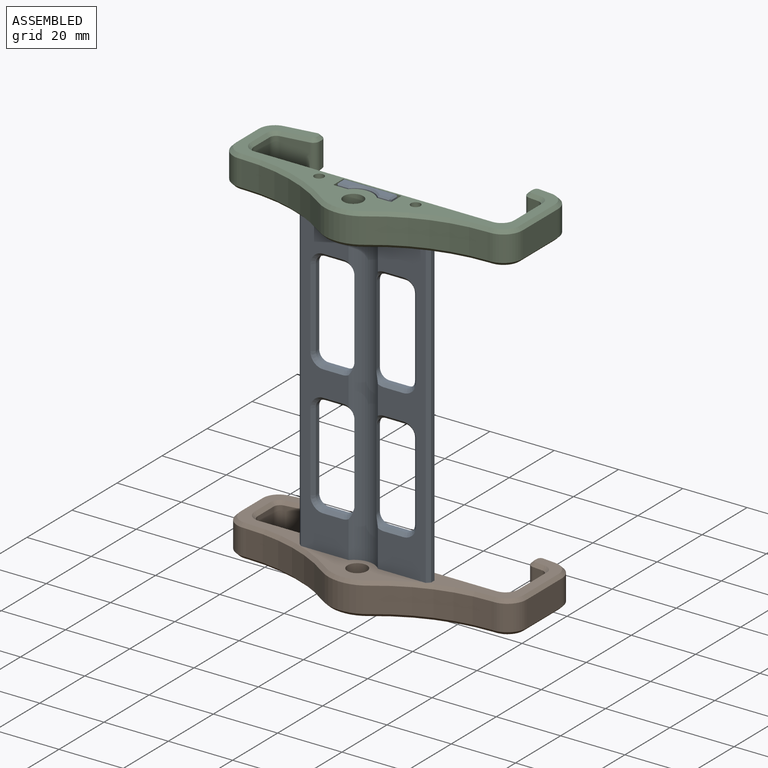
[diagram: assembled view]
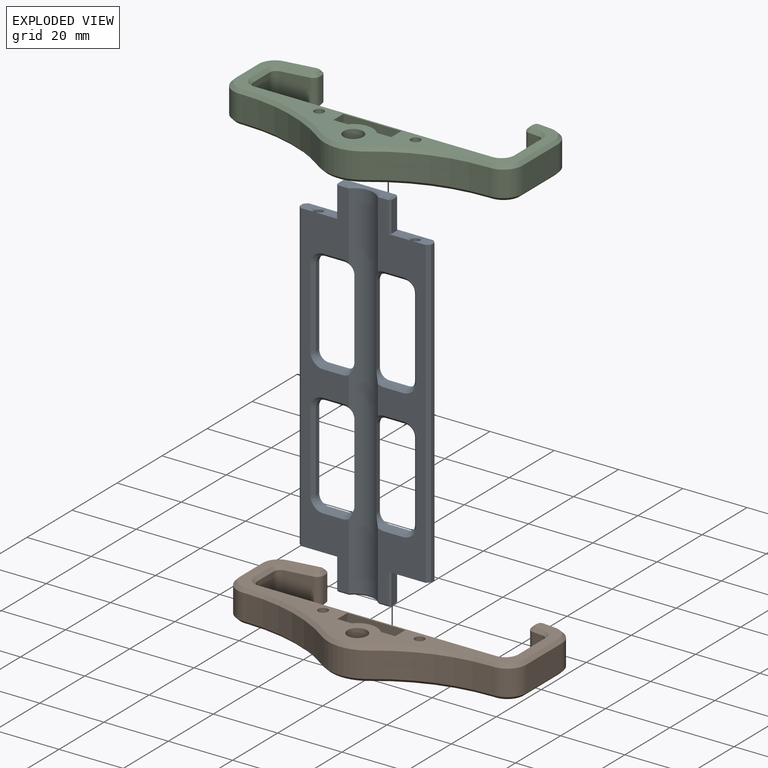
[diagram: exploded view]
GUIDED TOUR — MATED ASSEMBLY (Onshape document 2cb191aeb133913bc6169a5f, AutoMate assembly 2cb191aeb133913bc6169a5f_6d01fb769d9874e25568f675_39e03021b860ccd8de72395d_default)

This assembly has 3 components, labeled P0..P2 below (a component is one placed occurrence of a part; the same part can appear more than once), held together by 2 mates. A mate is a constraint between two components; its type names the relative motion it leaves free:
  FASTENED — locks the two components together rigidly (no relative motion).
Axis/direction vectors are unit vectors and 'through' points are millimeter coordinates, both in the assembly's world frame.

MATES
  1. FASTENED "Fastened 2": P0 <-> P2, direction (0.000, 0.000, -1.000) through (-7.82, 3.93, 30.43) mm
  2. FASTENED "Fastened 1": P0 <-> P1, direction (0.000, 0.000, 1.000) through (-7.82, 5.68, -64.07) mm

ASSEMBLY ORDER
  1. P0 — the base component [order heuristic]
  2. P1 [order heuristic]
  3. P2 [order heuristic]
Order-tag legend:
  [order heuristic] — this assembly is geometrically interlocked (no collision-free removal order exists), so components are listed in mate-graph order; insertion feasibility is not verified.

Of the 3 components, 2 carry the full construction recipe — the FeatureScript program that regenerates the part's solid from scratch; the rest are supplied as boundary geometry only.
Each toured component is shown spotlighted twice — in the assembled view, then in the exploded view, where a leader line traces a displaced component back to its assembled socket (saturated green if recipe-attached, orange if geometry-only; every other component desaturated gray) — followed by its recipe or geometry summary and the mates that hold it.
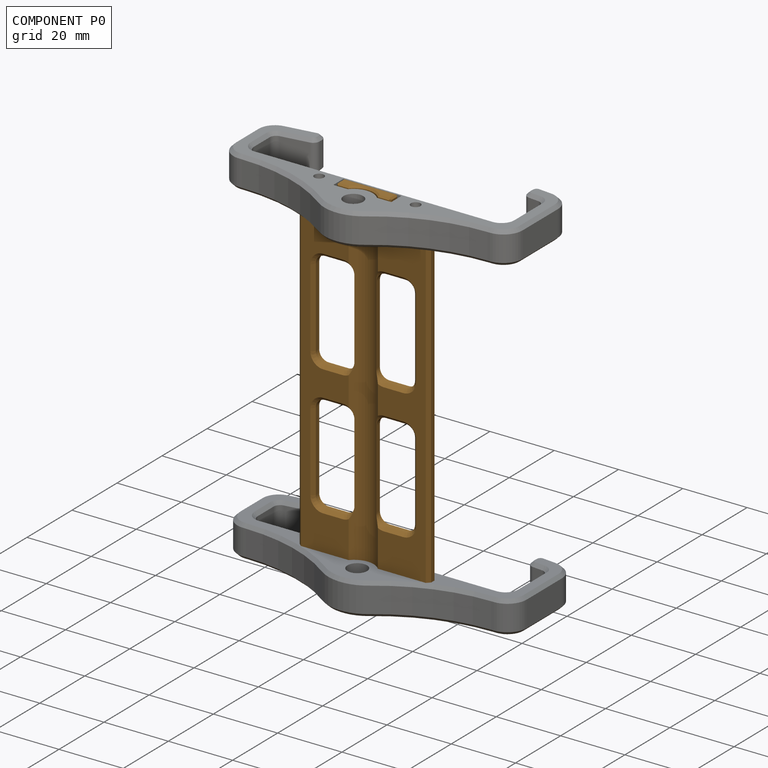
[diagram: component P0 — assembled]
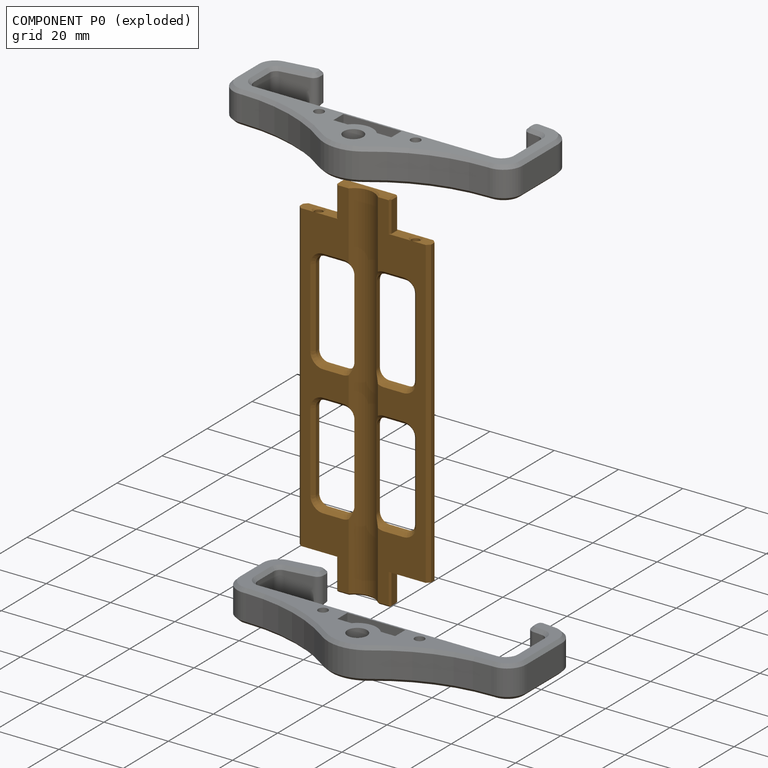
[diagram: component P0 — exploded]
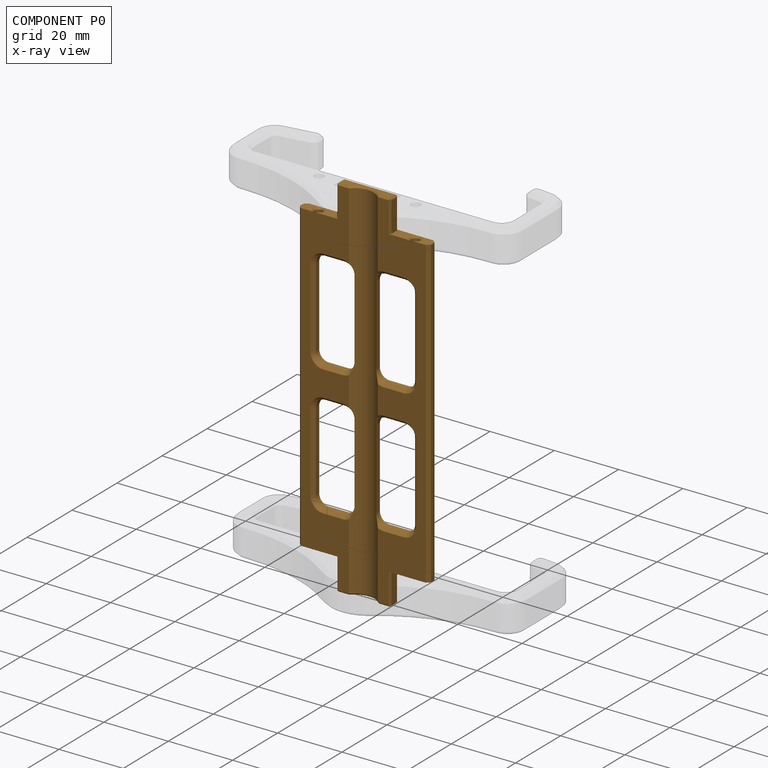
[diagram: component P0 — x-ray view]
COMPONENT P0 — geometry summary (no construction recipe available for this part):
  bounding box: 115.0 x 40.9 x 3.5 mm
  B-rep topology: 1 solid, 148 faces, 760 edges
  volume: 7630 mm^3 (46% of its bounding box)
  symmetry: 2-fold rotationally symmetric about the y axis; mirror-symmetric across its x mid-plane, z mid-plane
Held by: FASTENED mate "Fastened 2" to P2; FASTENED mate "Fastened 1" to P1.
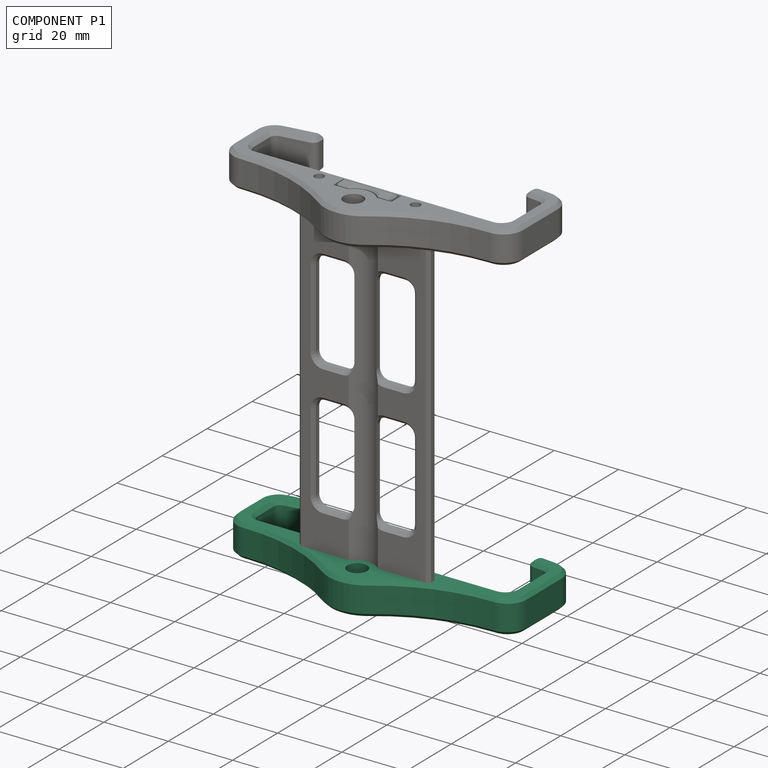
[diagram: component P1 — assembled]
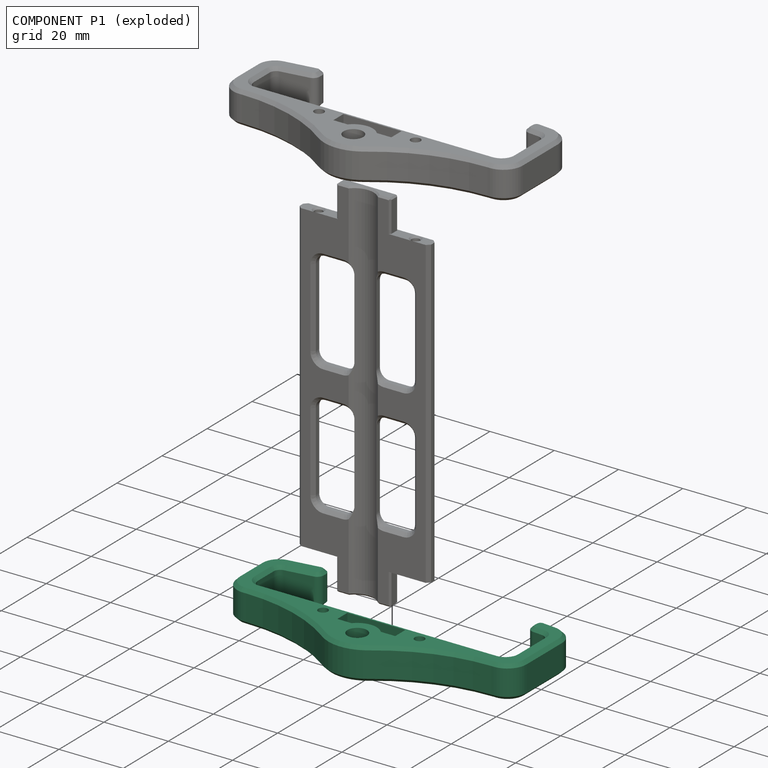
[diagram: component P1 — exploded]
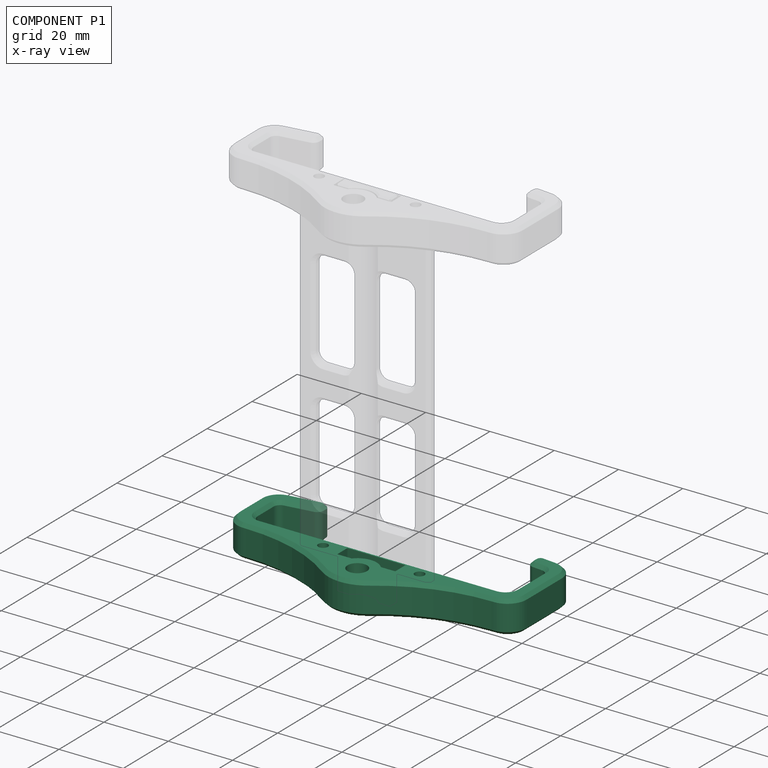
[diagram: component P1 — x-ray view]
COMPONENT P1 — recipe-attached (CADFS 00428147, mesh-verified: the recipe's output STEP matches this component's geometry to below the mesh-comparison resolution (tessellation chordal tolerance ~0.149 mm)).
Held by: FASTENED mate "Fastened 1" to P0.
Construction recipe (FeatureScript — the CAD program that rebuilds this solid; sketch coordinates are in the units given by the * unit suffixes, e.g. mm):

FeatureScript 1511;
import(path : "onshape/std/geometry.fs", version : "1511.0");
import(path : "onshape/std/common.fs", version : "1511.0");
const mm = millimeter;
const VERTEX = EntityType.VERTEX;
const EDGE = EntityType.EDGE;
const FACE = EntityType.FACE;
const BODY = EntityType.BODY;
function v(x, y){return vector(x, y);}
function OD(order){return orderDisambiguation(order);}
function OSD(set){return originalSetDisambiguation(set);}
function TD(topology){return topologyDisambiguation(topology);}
function TDD(query){return trueDependencyDisambiguation(query);}
function sQuery(a, b, c) {return sketchEntityQuery(a, b, c);}

annotation { "Feature Type Name" : "Feature", "Feature Type Description" : "" }
export const myFeature = defineFeature(function(context is Context, id is Id, definition is map)
    precondition{}
    {
        {
            var Q0;
            Q0=qCreatedBy(makeId("Right.planeOp"),FACE);
            var sketch = newSketch(context, id + "F0", { "sketchPlane" : qUnion([Q0])});
            skLineSegment(sketch, "E0", {"start": v(0, 77) * mm, "end": v(0, 3) * mm});
            skLineSegment(sketch, "E1", {"start": v(3, 80) * mm, "end": v(10, 80) * mm});
            skLineSegment(sketch, "E2", {"start": v(3, 0) * mm, "end": v(15.7, 0) * mm});
            skLineSegment(sketch, "E3", {"start": v(11.98, 78.3) * mm, "end": v(13.24, 69.84) * mm});
            skLineSegment(sketch, "E4", {"start": v(17.68, 1.8) * mm, "end": v(18, 4.97) * mm});
            skLineSegment(sketch, "E5.0", {"start": v(16.8, 79.89) * mm, "end": v(18.21, 70.43) * mm});
            skLineSegment(sketch, "E5.1", {"start": v(22.57, 0.4) * mm, "end": v(22.97, 4.47) * mm});
            skLineSegment(sketch, "E5.2", {"start": v(1, -5) * mm, "end": v(16.6, -5) * mm});
            skLineSegment(sketch, "E5.3", {"start": v(-5, 79) * mm, "end": v(-5, 78.16) * mm});
            skLineSegment(sketch, "E5.4", {"start": v(1, 85) * mm, "end": v(10.86, 85) * mm});
            skLineSegment(sketch, "E6", {"start": v(15.22, 68.13) * mm, "end": v(16.23, 68.13) * mm});
            skLineSegment(sketch, "E7", {"start": v(20.19, 6.76) * mm, "end": v(21.18, 6.66) * mm});
            skPoint(sketch, "E8.visualSharp", {"position": v(0, 72) * mm});
            skArc(sketch, "E8.filletArc", {"start": v(3, 80) * mm, "mid": v(0.88, 79.12) * mm, "end": v(0, 77) * mm});
            skPoint(sketch, "E9.visualSharp", {"position": v(11.72, 80) * mm});
            skArc(sketch, "E9.filletArc", {"start": v(11.98, 78.3) * mm, "mid": v(11.3, 79.52) * mm, "end": v(10, 80) * mm});
            skPoint(sketch, "E10.visualSharp", {"position": v(0, 0) * mm});
            skArc(sketch, "E10.filletArc", {"start": v(0, 3) * mm, "mid": v(0.88, 0.88) * mm, "end": v(3, 0) * mm});
            skPoint(sketch, "E11.visualSharp", {"position": v(17.5, 0) * mm});
            skArc(sketch, "E11.filletArc", {"start": v(15.7, 0) * mm, "mid": v(17.03, 0.52) * mm, "end": v(17.68, 1.8) * mm});
            skPoint(sketch, "E12.visualSharp", {"position": v(18.2, 6.96) * mm});
            skArc(sketch, "E12.filletArc", {"start": v(20.19, 6.76) * mm, "mid": v(18.72, 6.32) * mm, "end": v(18, 4.97) * mm});
            skPoint(sketch, "E13.visualSharp", {"position": v(23.17, 6.46) * mm});
            skArc(sketch, "E13.filletArc", {"start": v(22.97, 4.47) * mm, "mid": v(22.53, 5.94) * mm, "end": v(21.18, 6.66) * mm});
            skPoint(sketch, "E14.visualSharp", {"position": v(13.5, 68.13) * mm});
            skArc(sketch, "E14.filletArc", {"start": v(13.24, 69.84) * mm, "mid": v(13.92, 68.62) * mm, "end": v(15.22, 68.13) * mm});
            skPoint(sketch, "E15.visualSharp", {"position": v(18.56, 68.13) * mm});
            skArc(sketch, "E15.filletArc", {"start": v(16.23, 68.13) * mm, "mid": v(17.75, 68.83) * mm, "end": v(18.21, 70.43) * mm});
            skPoint(sketch, "E16.visualSharp", {"position": v(16.03, 85) * mm});
            skArc(sketch, "E16.filletArc", {"start": v(16.8, 79.89) * mm, "mid": v(14.78, 83.55) * mm, "end": v(10.86, 85) * mm});
            skPoint(sketch, "E17.visualSharp", {"position": v(-5, 85) * mm});
            skArc(sketch, "E17.filletArc", {"start": v(1, 85) * mm, "mid": v(-3.24, 83.24) * mm, "end": v(-5, 79) * mm});
            skPoint(sketch, "E18.visualSharp", {"position": v(22.02, -5) * mm});
            skArc(sketch, "E18.filletArc", {"start": v(16.6, -5) * mm, "mid": v(20.62, -3.45) * mm, "end": v(22.57, 0.4) * mm});
            skPoint(sketch, "E19.visualSharp", {"position": v(-5, -5) * mm});
            skArc(sketch, "E19.filletArc", {"start": v(-5, 1) * mm, "mid": v(-3.24, -3.24) * mm, "end": v(1, -5) * mm});
            skArc(sketch, "E20", {"start": v(-15.08, 47.4) * mm, "mid": v(-17.5, 40) * mm, "end": v(-15.08, 32.6) * mm});
            skLineSegment(sketch, "E21.trimOffspring", {"start": v(-5, 1.84) * mm, "end": v(-5, 1) * mm});
            skPoint(sketch, "E22.visualSharp", {"position": v(-5, 52.5) * mm});
            skArc(sketch, "E22.filletArc", {"start": v(-15.08, 47.4) * mm, "mid": v(-7.58, 61.97) * mm, "end": v(-5, 78.16) * mm});
            skPoint(sketch, "E23.visualSharp", {"position": v(-5, 27.5) * mm});
            skArc(sketch, "E23.filletArc", {"start": v(-5, 1.84) * mm, "mid": v(-7.58, 18.03) * mm, "end": v(-15.08, 32.6) * mm});
            skCircle(sketch, "E24", {"center": v(-10, 40) * mm, "radius": 3.05 * mm});
            skSolve(sketch);
        }
        {
            var Q0;
            Q0=makeQuery(id+"F0.imprint","IMPRINT",FACE,{"disambiguationData":[TD([[makeQuery(id+"F0.imprint","IMPRINT",EDGE,{"derivedFrom":sQuery(id+"F0.wireOp",EDGE,"E0")}),-1.0]])]});
            extrude(context, id + "F1", {"entities" : qUnion([Q0]), "depth" : 10 * mm});
        }
        {
            var Q0;
            Q0=makeQuery(id+"F1.opExtrude","SWEPT_BODY",BODY,{"disambiguationData":[OSD([sQuery(id+"F0.wireOp",EDGE,"E0"),sQuery(id+"F0.wireOp",EDGE,"E1"),sQuery(id+"F0.wireOp",EDGE,"E2"),sQuery(id+"F0.wireOp",EDGE,"E3"),sQuery(id+"F0.wireOp",EDGE,"E4"),sQuery(id+"F0.wireOp",EDGE,"E5.0"),sQuery(id+"F0.wireOp",EDGE,"E5.1"),sQuery(id+"F0.wireOp",EDGE,"E5.2"),sQuery(id+"F0.wireOp",EDGE,"E5.3"),sQuery(id+"F0.wireOp",EDGE,"E5.4"),sQuery(id+"F0.wireOp",EDGE,"E6"),sQuery(id+"F0.wireOp",EDGE,"E7"),sQuery(id+"F0.wireOp",EDGE,"E8.filletArc"),sQuery(id+"F0.wireOp",EDGE,"E9.filletArc"),sQuery(id+"F0.wireOp",EDGE,"E10.filletArc"),sQuery(id+"F0.wireOp",EDGE,"E11.filletArc"),sQuery(id+"F0.wireOp",EDGE,"E12.filletArc"),sQuery(id+"F0.wireOp",EDGE,"E13.filletArc"),sQuery(id+"F0.wireOp",EDGE,"E14.filletArc"),sQuery(id+"F0.wireOp",EDGE,"E15.filletArc"),sQuery(id+"F0.wireOp",EDGE,"E16.filletArc"),sQuery(id+"F0.wireOp",EDGE,"E17.filletArc"),sQuery(id+"F0.wireOp",EDGE,"E18.filletArc"),sQuery(id+"F0.wireOp",EDGE,"E19.filletArc"),sQuery(id+"F0.wireOp",EDGE,"E20"),sQuery(id+"F0.wireOp",EDGE,"E21.trimOffspring"),sQuery(id+"F0.wireOp",EDGE,"E22.filletArc"),sQuery(id+"F0.wireOp",EDGE,"E23.filletArc"),sQuery(id+"F0.wireOp",EDGE,"E24")])]});
            var Q1;
            Q1=makeQuery(id+"F1.opExtrude","CAP_EDGE",EDGE,{"disambiguationData":[OSD([sQuery(id+"F0.wireOp",EDGE,"E5.2")])],"isStart":true});
            transform(context, id + "F2", {"entities" : qUnion([Q0]), "transformType" : TransformType.ROTATION, "transformAxis" : qUnion([Q1]), "angle" : 90 * degree, "oppositeDirection" : true, "makeCopy" : false});
        }
        {
            var Q0;
            Q0=makeQuery(id+"F1.opExtrude","SWEPT_BODY",BODY,{"disambiguationData":[OSD([sQuery(id+"F0.wireOp",EDGE,"E0"),sQuery(id+"F0.wireOp",EDGE,"E1"),sQuery(id+"F0.wireOp",EDGE,"E2"),sQuery(id+"F0.wireOp",EDGE,"E3"),sQuery(id+"F0.wireOp",EDGE,"E4"),sQuery(id+"F0.wireOp",EDGE,"E5.0"),sQuery(id+"F0.wireOp",EDGE,"E5.1"),sQuery(id+"F0.wireOp",EDGE,"E5.2"),sQuery(id+"F0.wireOp",EDGE,"E5.3"),sQuery(id+"F0.wireOp",EDGE,"E5.4"),sQuery(id+"F0.wireOp",EDGE,"E6"),sQuery(id+"F0.wireOp",EDGE,"E7"),sQuery(id+"F0.wireOp",EDGE,"E8.filletArc"),sQuery(id+"F0.wireOp",EDGE,"E9.filletArc"),sQuery(id+"F0.wireOp",EDGE,"E10.filletArc"),sQuery(id+"F0.wireOp",EDGE,"E11.filletArc"),sQuery(id+"F0.wireOp",EDGE,"E12.filletArc"),sQuery(id+"F0.wireOp",EDGE,"E13.filletArc"),sQuery(id+"F0.wireOp",EDGE,"E14.filletArc"),sQuery(id+"F0.wireOp",EDGE,"E15.filletArc"),sQuery(id+"F0.wireOp",EDGE,"E16.filletArc"),sQuery(id+"F0.wireOp",EDGE,"E17.filletArc"),sQuery(id+"F0.wireOp",EDGE,"E18.filletArc"),sQuery(id+"F0.wireOp",EDGE,"E19.filletArc"),sQuery(id+"F0.wireOp",EDGE,"E20"),sQuery(id+"F0.wireOp",EDGE,"E21.trimOffspring"),sQuery(id+"F0.wireOp",EDGE,"E22.filletArc"),sQuery(id+"F0.wireOp",EDGE,"E23.filletArc"),sQuery(id+"F0.wireOp",EDGE,"E24")])]});
            transform(context, id + "F3", {"entities" : qUnion([Q0]), "transformType" : TransformType.TRANSLATION_3D, "dx" : 0 * mm, "dy" : 0 * mm, "dz" : 10 * mm, "makeCopy" : false});
        }
        {
            var Q0;
            Q0=makeQuery(id+"F1.opExtrude","SWEPT_BODY",BODY,{"disambiguationData":[OSD([sQuery(id+"F0.wireOp",EDGE,"E0"),sQuery(id+"F0.wireOp",EDGE,"E1"),sQuery(id+"F0.wireOp",EDGE,"E2"),sQuery(id+"F0.wireOp",EDGE,"E3"),sQuery(id+"F0.wireOp",EDGE,"E4"),sQuery(id+"F0.wireOp",EDGE,"E5.0"),sQuery(id+"F0.wireOp",EDGE,"E5.1"),sQuery(id+"F0.wireOp",EDGE,"E5.2"),sQuery(id+"F0.wireOp",EDGE,"E5.3"),sQuery(id+"F0.wireOp",EDGE,"E5.4"),sQuery(id+"F0.wireOp",EDGE,"E6"),sQuery(id+"F0.wireOp",EDGE,"E7"),sQuery(id+"F0.wireOp",EDGE,"E8.filletArc"),sQuery(id+"F0.wireOp",EDGE,"E9.filletArc"),sQuery(id+"F0.wireOp",EDGE,"E10.filletArc"),sQuery(id+"F0.wireOp",EDGE,"E11.filletArc"),sQuery(id+"F0.wireOp",EDGE,"E12.filletArc"),sQuery(id+"F0.wireOp",EDGE,"E13.filletArc"),sQuery(id+"F0.wireOp",EDGE,"E14.filletArc"),sQuery(id+"F0.wireOp",EDGE,"E15.filletArc"),sQuery(id+"F0.wireOp",EDGE,"E16.filletArc"),sQuery(id+"F0.wireOp",EDGE,"E17.filletArc"),sQuery(id+"F0.wireOp",EDGE,"E18.filletArc"),sQuery(id+"F0.wireOp",EDGE,"E19.filletArc"),sQuery(id+"F0.wireOp",EDGE,"E20"),sQuery(id+"F0.wireOp",EDGE,"E21.trimOffspring"),sQuery(id+"F0.wireOp",EDGE,"E22.filletArc"),sQuery(id+"F0.wireOp",EDGE,"E23.filletArc"),sQuery(id+"F0.wireOp",EDGE,"E24")])]});
            transform(context, id + "F4", {"entities" : qUnion([Q0]), "transformType" : TransformType.TRANSLATION_3D, "dx" : 0 * mm, "dy" : 0 * mm, "dz" : -10 * mm, "makeCopy" : false});
        }
        {
            var Q0;
            Q0=makeQuery(id+"F1.opExtrude","SWEPT_BODY",BODY,{"disambiguationData":[OSD([sQuery(id+"F0.wireOp",EDGE,"E0"),sQuery(id+"F0.wireOp",EDGE,"E1"),sQuery(id+"F0.wireOp",EDGE,"E2"),sQuery(id+"F0.wireOp",EDGE,"E3"),sQuery(id+"F0.wireOp",EDGE,"E4"),sQuery(id+"F0.wireOp",EDGE,"E5.0"),sQuery(id+"F0.wireOp",EDGE,"E5.1"),sQuery(id+"F0.wireOp",EDGE,"E5.2"),sQuery(id+"F0.wireOp",EDGE,"E5.3"),sQuery(id+"F0.wireOp",EDGE,"E5.4"),sQuery(id+"F0.wireOp",EDGE,"E6"),sQuery(id+"F0.wireOp",EDGE,"E7"),sQuery(id+"F0.wireOp",EDGE,"E8.filletArc"),sQuery(id+"F0.wireOp",EDGE,"E9.filletArc"),sQuery(id+"F0.wireOp",EDGE,"E10.filletArc"),sQuery(id+"F0.wireOp",EDGE,"E11.filletArc"),sQuery(id+"F0.wireOp",EDGE,"E12.filletArc"),sQuery(id+"F0.wireOp",EDGE,"E13.filletArc"),sQuery(id+"F0.wireOp",EDGE,"E14.filletArc"),sQuery(id+"F0.wireOp",EDGE,"E15.filletArc"),sQuery(id+"F0.wireOp",EDGE,"E16.filletArc"),sQuery(id+"F0.wireOp",EDGE,"E17.filletArc"),sQuery(id+"F0.wireOp",EDGE,"E18.filletArc"),sQuery(id+"F0.wireOp",EDGE,"E19.filletArc"),sQuery(id+"F0.wireOp",EDGE,"E20"),sQuery(id+"F0.wireOp",EDGE,"E21.trimOffspring"),sQuery(id+"F0.wireOp",EDGE,"E22.filletArc"),sQuery(id+"F0.wireOp",EDGE,"E23.filletArc"),sQuery(id+"F0.wireOp",EDGE,"E24")])]});
            transform(context, id + "F5", {"entities" : qUnion([Q0]), "transformType" : TransformType.TRANSLATION_3D, "dx" : 0 * mm, "dy" : 0 * mm, "dz" : 5 * mm, "makeCopy" : false});
        }
        {
            var Q0;
            Q0=makeQuery(id+"F1.opExtrude","SWEPT_BODY",BODY,{"disambiguationData":[OSD([sQuery(id+"F0.wireOp",EDGE,"E0"),sQuery(id+"F0.wireOp",EDGE,"E1"),sQuery(id+"F0.wireOp",EDGE,"E2"),sQuery(id+"F0.wireOp",EDGE,"E3"),sQuery(id+"F0.wireOp",EDGE,"E4"),sQuery(id+"F0.wireOp",EDGE,"E5.0"),sQuery(id+"F0.wireOp",EDGE,"E5.1"),sQuery(id+"F0.wireOp",EDGE,"E5.2"),sQuery(id+"F0.wireOp",EDGE,"E5.3"),sQuery(id+"F0.wireOp",EDGE,"E5.4"),sQuery(id+"F0.wireOp",EDGE,"E6"),sQuery(id+"F0.wireOp",EDGE,"E7"),sQuery(id+"F0.wireOp",EDGE,"E8.filletArc"),sQuery(id+"F0.wireOp",EDGE,"E9.filletArc"),sQuery(id+"F0.wireOp",EDGE,"E10.filletArc"),sQuery(id+"F0.wireOp",EDGE,"E11.filletArc"),sQuery(id+"F0.wireOp",EDGE,"E12.filletArc"),sQuery(id+"F0.wireOp",EDGE,"E13.filletArc"),sQuery(id+"F0.wireOp",EDGE,"E14.filletArc"),sQuery(id+"F0.wireOp",EDGE,"E15.filletArc"),sQuery(id+"F0.wireOp",EDGE,"E16.filletArc"),sQuery(id+"F0.wireOp",EDGE,"E17.filletArc"),sQuery(id+"F0.wireOp",EDGE,"E18.filletArc"),sQuery(id+"F0.wireOp",EDGE,"E19.filletArc"),sQuery(id+"F0.wireOp",EDGE,"E20"),sQuery(id+"F0.wireOp",EDGE,"E21.trimOffspring"),sQuery(id+"F0.wireOp",EDGE,"E22.filletArc"),sQuery(id+"F0.wireOp",EDGE,"E23.filletArc"),sQuery(id+"F0.wireOp",EDGE,"E24")])]});
            transform(context, id + "F6", {"entities" : qUnion([Q0]), "transformType" : TransformType.TRANSLATION_3D, "dx" : 40 * mm, "dy" : 0 * mm, "dz" : 0 * mm, "makeCopy" : false});
        }
        {
            var Q0;
            Q0=makeQuery(id+"F1.opExtrude","CAP_FACE",FACE,{"disambiguationData":[OSD([sQuery(id+"F0.wireOp",EDGE,"E0"),sQuery(id+"F0.wireOp",EDGE,"E1"),sQuery(id+"F0.wireOp",EDGE,"E2"),sQuery(id+"F0.wireOp",EDGE,"E3"),sQuery(id+"F0.wireOp",EDGE,"E4"),sQuery(id+"F0.wireOp",EDGE,"E5.0"),sQuery(id+"F0.wireOp",EDGE,"E5.1"),sQuery(id+"F0.wireOp",EDGE,"E5.2"),sQuery(id+"F0.wireOp",EDGE,"E5.3"),sQuery(id+"F0.wireOp",EDGE,"E5.4"),sQuery(id+"F0.wireOp",EDGE,"E6"),sQuery(id+"F0.wireOp",EDGE,"E7"),sQuery(id+"F0.wireOp",EDGE,"E8.filletArc"),sQuery(id+"F0.wireOp",EDGE,"E9.filletArc"),sQuery(id+"F0.wireOp",EDGE,"E10.filletArc"),sQuery(id+"F0.wireOp",EDGE,"E11.filletArc"),sQuery(id+"F0.wireOp",EDGE,"E12.filletArc"),sQuery(id+"F0.wireOp",EDGE,"E13.filletArc"),sQuery(id+"F0.wireOp",EDGE,"E14.filletArc"),sQuery(id+"F0.wireOp",EDGE,"E15.filletArc"),sQuery(id+"F0.wireOp",EDGE,"E16.filletArc"),sQuery(id+"F0.wireOp",EDGE,"E17.filletArc"),sQuery(id+"F0.wireOp",EDGE,"E18.filletArc"),sQuery(id+"F0.wireOp",EDGE,"E19.filletArc"),sQuery(id+"F0.wireOp",EDGE,"E20"),sQuery(id+"F0.wireOp",EDGE,"E21.trimOffspring"),sQuery(id+"F0.wireOp",EDGE,"E22.filletArc"),sQuery(id+"F0.wireOp",EDGE,"E23.filletArc"),sQuery(id+"F0.wireOp",EDGE,"E24")])],"isStart":false});
            var sketch = newSketch(context, id + "F7", { "sketchPlane" : qUnion([Q0])});
            skLineSegment(sketch, "E25", {"start": v(-5, -10) * mm, "end": v(-5, 3.8) * mm, "construction": true});
            skPoint(sketch, "E25.endSnap0", {"position": v(-5, 0) * mm});
            skLineSegment(sketch, "E26", {"start": v(4.01, -1.5) * mm, "end": v(4.01, -6) * mm});
            skLineSegment(sketch, "E27", {"start": v(4.01, -6) * mm, "end": v(-0.46, -6) * mm});
            skLineSegment(sketch, "E28", {"start": v(-14.01, -6) * mm, "end": v(-14.01, -1.5) * mm});
            skLineSegment(sketch, "E29", {"start": v(-14.01, -1.5) * mm, "end": v(4.01, -1.5) * mm});
            skArc(sketch, "E30", {"start": v(-0.46, -6) * mm, "mid": v(-5, -3.95) * mm, "end": v(-9.54, -6) * mm});
            skLineSegment(sketch, "E31.trimOffspring", {"start": v(-9.54, -6) * mm, "end": v(-14.01, -6) * mm});
            skLineSegment(sketch, "E32", {"start": v(-14.01, -3.75) * mm, "end": v(19.58, -3.75) * mm, "construction": true});
            skLineSegment(sketch, "E33", {"start": v(-14.01, -3.75) * mm, "end": v(-26.01, -3.75) * mm, "construction": true});
            skCircle(sketch, "E34", {"center": v(-20.01, -3.75) * mm, "radius": 1.5 * mm});
            skCircle(sketch, "E35", {"center": v(10.01, -3.75) * mm, "radius": 1.5 * mm});
            skSolve(sketch);
        }
        {
            var Q0;
            Q0=makeQuery(id+"F7.imprint","IMPRINT",FACE,{"disambiguationData":[TD([[makeQuery(id+"F7.imprint","IMPRINT",EDGE,{"derivedFrom":sQuery(id+"F7.wireOp",EDGE,"E26")}),-1.0]])]});
            var Q1;
            Q1=makeQuery(id+"F7.imprint","IMPRINT",FACE,{"disambiguationData":[TD([[makeQuery(id+"F7.imprint","IMPRINT",EDGE,{"derivedFrom":sQuery(id+"F7.wireOp",EDGE,"E34")}),1.0]])]});
            var Q2;
            Q2=makeQuery(id+"F7.imprint","IMPRINT",FACE,{"disambiguationData":[TD([[makeQuery(id+"F7.imprint","IMPRINT",EDGE,{"derivedFrom":sQuery(id+"F7.wireOp",EDGE,"E35")}),1.0]])]});
            extrude(context, id + "F8", {"entities" : qUnion([Q0, Q1, Q2]), "operationType" : NewBodyOperationType.REMOVE, "endBound" : BoundingType.UP_TO_NEXT, "oppositeDirection" : true, "depth" : 25 * mm});
        }
        {
            var Q0;
            Q0=makeQuery(id+"F1.opExtrude","CAP_EDGE",EDGE,{"disambiguationData":[OSD([sQuery(id+"F0.wireOp",EDGE,"E0")])],"isStart":false});
            var Q1;
            Q1=makeQuery(id+"F1.opExtrude","CAP_EDGE",EDGE,{"disambiguationData":[OSD([sQuery(id+"F0.wireOp",EDGE,"E8.filletArc")])],"isStart":false});
            var Q2;
            Q2=makeQuery(id+"F1.opExtrude","CAP_EDGE",EDGE,{"disambiguationData":[OSD([sQuery(id+"F0.wireOp",EDGE,"E1")])],"isStart":false});
            var Q3;
            Q3=makeQuery(id+"F1.opExtrude","CAP_EDGE",EDGE,{"disambiguationData":[OSD([sQuery(id+"F0.wireOp",EDGE,"E9.filletArc")])],"isStart":false});
            var Q4;
            Q4=makeQuery(id+"F1.opExtrude","CAP_EDGE",EDGE,{"disambiguationData":[OSD([sQuery(id+"F0.wireOp",EDGE,"E3")])],"isStart":false});
            var Q5;
            Q5=makeQuery(id+"F1.opExtrude","CAP_EDGE",EDGE,{"disambiguationData":[OSD([sQuery(id+"F0.wireOp",EDGE,"E14.filletArc")])],"isStart":false});
            var Q6;
            Q6=makeQuery(id+"F1.opExtrude","CAP_EDGE",EDGE,{"disambiguationData":[OSD([sQuery(id+"F0.wireOp",EDGE,"E6")])],"isStart":false});
            var Q7;
            Q7=makeQuery(id+"F1.opExtrude","CAP_EDGE",EDGE,{"disambiguationData":[OSD([sQuery(id+"F0.wireOp",EDGE,"E15.filletArc")])],"isStart":false});
            var Q8;
            Q8=makeQuery(id+"F1.opExtrude","CAP_EDGE",EDGE,{"disambiguationData":[OSD([sQuery(id+"F0.wireOp",EDGE,"E5.0")])],"isStart":false});
            var Q9;
            Q9=makeQuery(id+"F1.opExtrude","CAP_EDGE",EDGE,{"disambiguationData":[OSD([sQuery(id+"F0.wireOp",EDGE,"E16.filletArc")])],"isStart":false});
            var Q10;
            Q10=makeQuery(id+"F1.opExtrude","CAP_EDGE",EDGE,{"disambiguationData":[OSD([sQuery(id+"F0.wireOp",EDGE,"E5.4")])],"isStart":false});
            var Q11;
            Q11=makeQuery(id+"F1.opExtrude","CAP_EDGE",EDGE,{"disambiguationData":[OSD([sQuery(id+"F0.wireOp",EDGE,"E17.filletArc")])],"isStart":false});
            var Q12;
            Q12=makeQuery(id+"F1.opExtrude","CAP_EDGE",EDGE,{"disambiguationData":[OSD([sQuery(id+"F0.wireOp",EDGE,"E5.3")])],"isStart":false});
            var Q13;
            Q13=makeQuery(id+"F1.opExtrude","CAP_EDGE",EDGE,{"disambiguationData":[OSD([sQuery(id+"F0.wireOp",EDGE,"E22.filletArc")])],"isStart":false});
            var Q14;
            Q14=makeQuery(id+"F1.opExtrude","CAP_EDGE",EDGE,{"disambiguationData":[OSD([sQuery(id+"F0.wireOp",EDGE,"E20")])],"isStart":false});
            var Q15;
            Q15=makeQuery(id+"F1.opExtrude","CAP_EDGE",EDGE,{"disambiguationData":[OSD([sQuery(id+"F0.wireOp",EDGE,"E23.filletArc")])],"isStart":false});
            var Q16;
            Q16=makeQuery(id+"F1.opExtrude","CAP_EDGE",EDGE,{"disambiguationData":[OSD([sQuery(id+"F0.wireOp",EDGE,"E21.trimOffspring")])],"isStart":false});
            var Q17;
            Q17=makeQuery(id+"F1.opExtrude","CAP_EDGE",EDGE,{"disambiguationData":[OSD([sQuery(id+"F0.wireOp",EDGE,"E19.filletArc")])],"isStart":false});
            var Q18;
            Q18=makeQuery(id+"F1.opExtrude","CAP_EDGE",EDGE,{"disambiguationData":[OSD([sQuery(id+"F0.wireOp",EDGE,"E5.2")])],"isStart":false});
            var Q19;
            Q19=makeQuery(id+"F1.opExtrude","CAP_EDGE",EDGE,{"disambiguationData":[OSD([sQuery(id+"F0.wireOp",EDGE,"E18.filletArc")])],"isStart":false});
            var Q20;
            Q20=makeQuery(id+"F1.opExtrude","CAP_EDGE",EDGE,{"disambiguationData":[OSD([sQuery(id+"F0.wireOp",EDGE,"E5.1")])],"isStart":false});
            var Q21;
            Q21=makeQuery(id+"F1.opExtrude","CAP_EDGE",EDGE,{"disambiguationData":[OSD([sQuery(id+"F0.wireOp",EDGE,"E13.filletArc")])],"isStart":false});
            var Q22;
            Q22=makeQuery(id+"F1.opExtrude","CAP_EDGE",EDGE,{"disambiguationData":[OSD([sQuery(id+"F0.wireOp",EDGE,"E7")])],"isStart":false});
            var Q23;
            Q23=makeQuery(id+"F1.opExtrude","CAP_EDGE",EDGE,{"disambiguationData":[OSD([sQuery(id+"F0.wireOp",EDGE,"E12.filletArc")])],"isStart":false});
            var Q24;
            Q24=makeQuery(id+"F1.opExtrude","CAP_EDGE",EDGE,{"disambiguationData":[OSD([sQuery(id+"F0.wireOp",EDGE,"E4")])],"isStart":false});
            var Q25;
            Q25=makeQuery(id+"F1.opExtrude","CAP_EDGE",EDGE,{"disambiguationData":[OSD([sQuery(id+"F0.wireOp",EDGE,"E11.filletArc")])],"isStart":false});
            var Q26;
            Q26=makeQuery(id+"F1.opExtrude","CAP_EDGE",EDGE,{"disambiguationData":[OSD([sQuery(id+"F0.wireOp",EDGE,"E2")])],"isStart":false});
            var Q27;
            Q27=makeQuery(id+"F1.opExtrude","CAP_EDGE",EDGE,{"disambiguationData":[OSD([sQuery(id+"F0.wireOp",EDGE,"E10.filletArc")])],"isStart":false});
            chamfer(context, id + "F9", {"entities" : qUnion([Q0, Q1, Q2, Q3, Q4, Q5, Q6, Q7, Q8, Q9, Q10, Q11, Q12, Q13, Q14, Q15, Q16, Q17, Q18, Q19, Q20, Q21, Q22, Q23, Q24, Q25, Q26, Q27]), "width" : 1 * mm, "tangentPropagation" : true});
        }
        {
            var Q0;
            Q0=makeQuery(id+"F1.opExtrude","CAP_EDGE",EDGE,{"disambiguationData":[OSD([sQuery(id+"F0.wireOp",EDGE,"E0")])],"isStart":true});
            var Q1;
            Q1=makeQuery(id+"F1.opExtrude","CAP_EDGE",EDGE,{"disambiguationData":[OSD([sQuery(id+"F0.wireOp",EDGE,"E10.filletArc")])],"isStart":true});
            var Q2;
            Q2=makeQuery(id+"F1.opExtrude","CAP_EDGE",EDGE,{"disambiguationData":[OSD([sQuery(id+"F0.wireOp",EDGE,"E2")])],"isStart":true});
            var Q3;
            Q3=makeQuery(id+"F1.opExtrude","CAP_EDGE",EDGE,{"disambiguationData":[OSD([sQuery(id+"F0.wireOp",EDGE,"E11.filletArc")])],"isStart":true});
            var Q4;
            Q4=makeQuery(id+"F1.opExtrude","CAP_EDGE",EDGE,{"disambiguationData":[OSD([sQuery(id+"F0.wireOp",EDGE,"E4")])],"isStart":true});
            var Q5;
            Q5=makeQuery(id+"F1.opExtrude","CAP_EDGE",EDGE,{"disambiguationData":[OSD([sQuery(id+"F0.wireOp",EDGE,"E12.filletArc")])],"isStart":true});
            var Q6;
            Q6=makeQuery(id+"F1.opExtrude","CAP_EDGE",EDGE,{"disambiguationData":[OSD([sQuery(id+"F0.wireOp",EDGE,"E7")])],"isStart":true});
            var Q7;
            Q7=makeQuery(id+"F1.opExtrude","CAP_EDGE",EDGE,{"disambiguationData":[OSD([sQuery(id+"F0.wireOp",EDGE,"E13.filletArc")])],"isStart":true});
            var Q8;
            Q8=makeQuery(id+"F1.opExtrude","CAP_EDGE",EDGE,{"disambiguationData":[OSD([sQuery(id+"F0.wireOp",EDGE,"E5.1")])],"isStart":true});
            var Q9;
            Q9=makeQuery(id+"F1.opExtrude","CAP_EDGE",EDGE,{"disambiguationData":[OSD([sQuery(id+"F0.wireOp",EDGE,"E18.filletArc")])],"isStart":true});
            var Q10;
            Q10=makeQuery(id+"F1.opExtrude","CAP_EDGE",EDGE,{"disambiguationData":[OSD([sQuery(id+"F0.wireOp",EDGE,"E5.2")])],"isStart":true});
            var Q11;
            Q11=makeQuery(id+"F1.opExtrude","CAP_EDGE",EDGE,{"disambiguationData":[OSD([sQuery(id+"F0.wireOp",EDGE,"E19.filletArc")])],"isStart":true});
            var Q12;
            Q12=makeQuery(id+"F1.opExtrude","CAP_EDGE",EDGE,{"disambiguationData":[OSD([sQuery(id+"F0.wireOp",EDGE,"E21.trimOffspring")])],"isStart":true});
            var Q13;
            Q13=makeQuery(id+"F1.opExtrude","CAP_EDGE",EDGE,{"disambiguationData":[OSD([sQuery(id+"F0.wireOp",EDGE,"E23.filletArc")])],"isStart":true});
            var Q14;
            Q14=makeQuery(id+"F1.opExtrude","CAP_EDGE",EDGE,{"disambiguationData":[OSD([sQuery(id+"F0.wireOp",EDGE,"E20")])],"isStart":true});
            var Q15;
            Q15=makeQuery(id+"F1.opExtrude","CAP_EDGE",EDGE,{"disambiguationData":[OSD([sQuery(id+"F0.wireOp",EDGE,"E22.filletArc")])],"isStart":true});
            var Q16;
            Q16=makeQuery(id+"F1.opExtrude","CAP_EDGE",EDGE,{"disambiguationData":[OSD([sQuery(id+"F0.wireOp",EDGE,"E5.3")])],"isStart":true});
            var Q17;
            Q17=makeQuery(id+"F1.opExtrude","CAP_EDGE",EDGE,{"disambiguationData":[OSD([sQuery(id+"F0.wireOp",EDGE,"E17.filletArc")])],"isStart":true});
            var Q18;
            Q18=makeQuery(id+"F1.opExtrude","CAP_EDGE",EDGE,{"disambiguationData":[OSD([sQuery(id+"F0.wireOp",EDGE,"E5.4")])],"isStart":true});
            var Q19;
            Q19=makeQuery(id+"F1.opExtrude","CAP_EDGE",EDGE,{"disambiguationData":[OSD([sQuery(id+"F0.wireOp",EDGE,"E16.filletArc")])],"isStart":true});
            var Q20;
            Q20=makeQuery(id+"F1.opExtrude","CAP_EDGE",EDGE,{"disambiguationData":[OSD([sQuery(id+"F0.wireOp",EDGE,"E5.0")])],"isStart":true});
            var Q21;
            Q21=makeQuery(id+"F1.opExtrude","CAP_EDGE",EDGE,{"disambiguationData":[OSD([sQuery(id+"F0.wireOp",EDGE,"E15.filletArc")])],"isStart":true});
            var Q22;
            Q22=makeQuery(id+"F1.opExtrude","CAP_EDGE",EDGE,{"disambiguationData":[OSD([sQuery(id+"F0.wireOp",EDGE,"E6")])],"isStart":true});
            var Q23;
            Q23=makeQuery(id+"F1.opExtrude","CAP_EDGE",EDGE,{"disambiguationData":[OSD([sQuery(id+"F0.wireOp",EDGE,"E14.filletArc")])],"isStart":true});
            var Q24;
            Q24=makeQuery(id+"F1.opExtrude","CAP_EDGE",EDGE,{"disambiguationData":[OSD([sQuery(id+"F0.wireOp",EDGE,"E3")])],"isStart":true});
            var Q25;
            Q25=makeQuery(id+"F1.opExtrude","CAP_EDGE",EDGE,{"disambiguationData":[OSD([sQuery(id+"F0.wireOp",EDGE,"E9.filletArc")])],"isStart":true});
            var Q26;
            Q26=makeQuery(id+"F1.opExtrude","CAP_EDGE",EDGE,{"disambiguationData":[OSD([sQuery(id+"F0.wireOp",EDGE,"E1")])],"isStart":true});
            var Q27;
            Q27=makeQuery(id+"F1.opExtrude","CAP_EDGE",EDGE,{"disambiguationData":[OSD([sQuery(id+"F0.wireOp",EDGE,"E8.filletArc")])],"isStart":true});
            chamfer(context, id + "F10", {"entities" : qUnion([Q0, Q1, Q2, Q3, Q4, Q5, Q6, Q7, Q8, Q9, Q10, Q11, Q12, Q13, Q14, Q15, Q16, Q17, Q18, Q19, Q20, Q21, Q22, Q23, Q24, Q25, Q26, Q27]), "width" : 1 * mm, "tangentPropagation" : true});
        }
    });
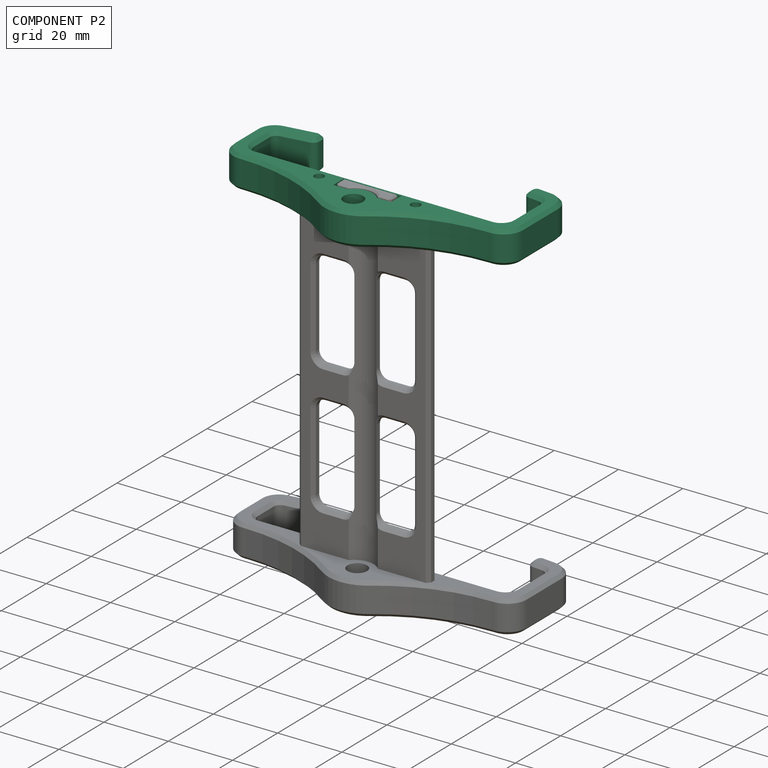
[diagram: component P2 — assembled]
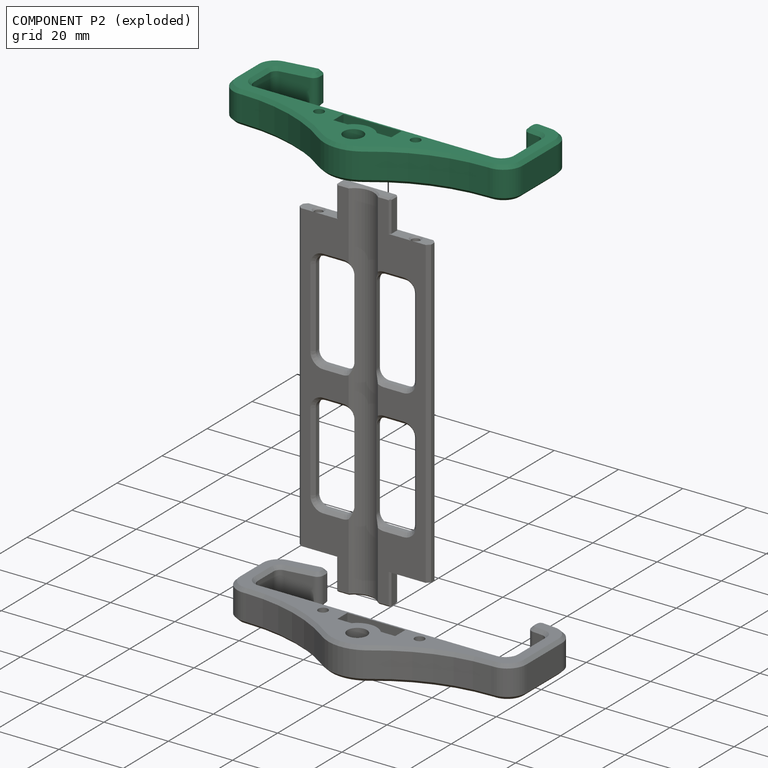
[diagram: component P2 — exploded]
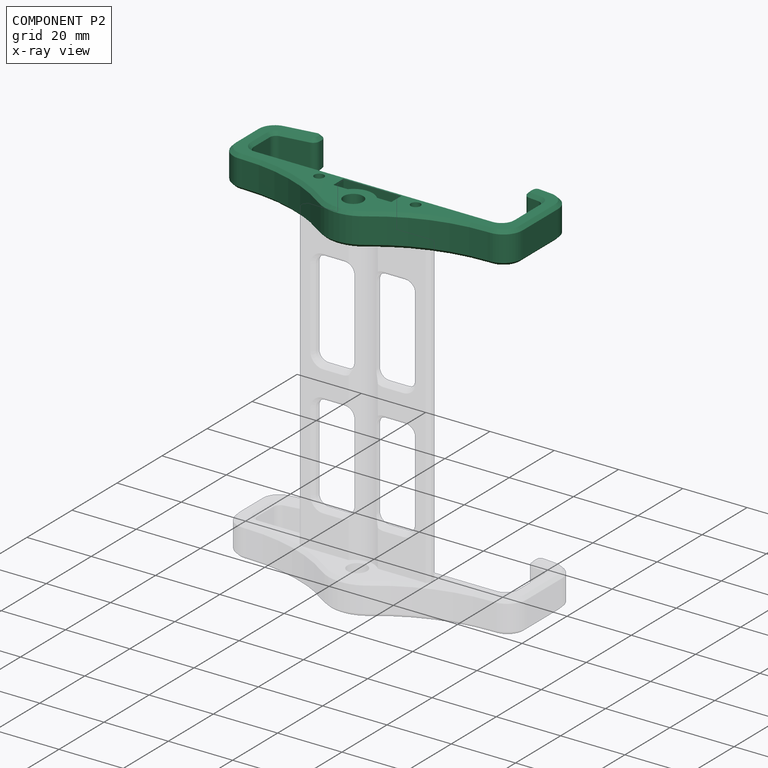
[diagram: component P2 — x-ray view]
COMPONENT P2 — same part as P1 (CADFS 00428147); its construction recipe is shown at P1.
Held by: FASTENED mate "Fastened 2" to P0.
PROVENANCE & LICENSES
Assembly (occurrences, transforms, mates, per-part STEP geometry): AutoMate dataset, Zenodo record 7776208, CC0.
Construction recipes: CADFS (HuggingFace VladPyatov/CADFS, CC-BY-4.0, layered over the ABC dataset), FeatureScript reconstruction programs keyed by ABC model id.
Join: ABC meta listings map ABC model id -> Onshape documentId; within a shared document, parts are matched by geometric signature (bounding-box dims + volume at 0.1% relative tolerance, exact B-rep face/solid counts).
Verification: 2 of this assembly's 3 components carry a recipe attachment, and every attachment is mesh-verified: the CADFS STEP and the AutoMate member STEP were compared as meshes in their shared local frame (symmetric sampled-point-to-mesh distance); worst across the 2 attachments: below the mesh-comparison resolution (tessellation chordal tolerance ~0.149 mm) on a 99 mm part.
Renders: orthographic iso camera (az 35 / el 25); the floor grid conveys scale (grid pitch printed in each image; no ruler). In the exploded view each component is displaced by its stored offset vector: the offsets alone carry the explosion direction (mate normal/axis signs are not orientation cues and do not encode it), and separation distances are assigned per mate-chain, not proportionally to assembly-order depth.
